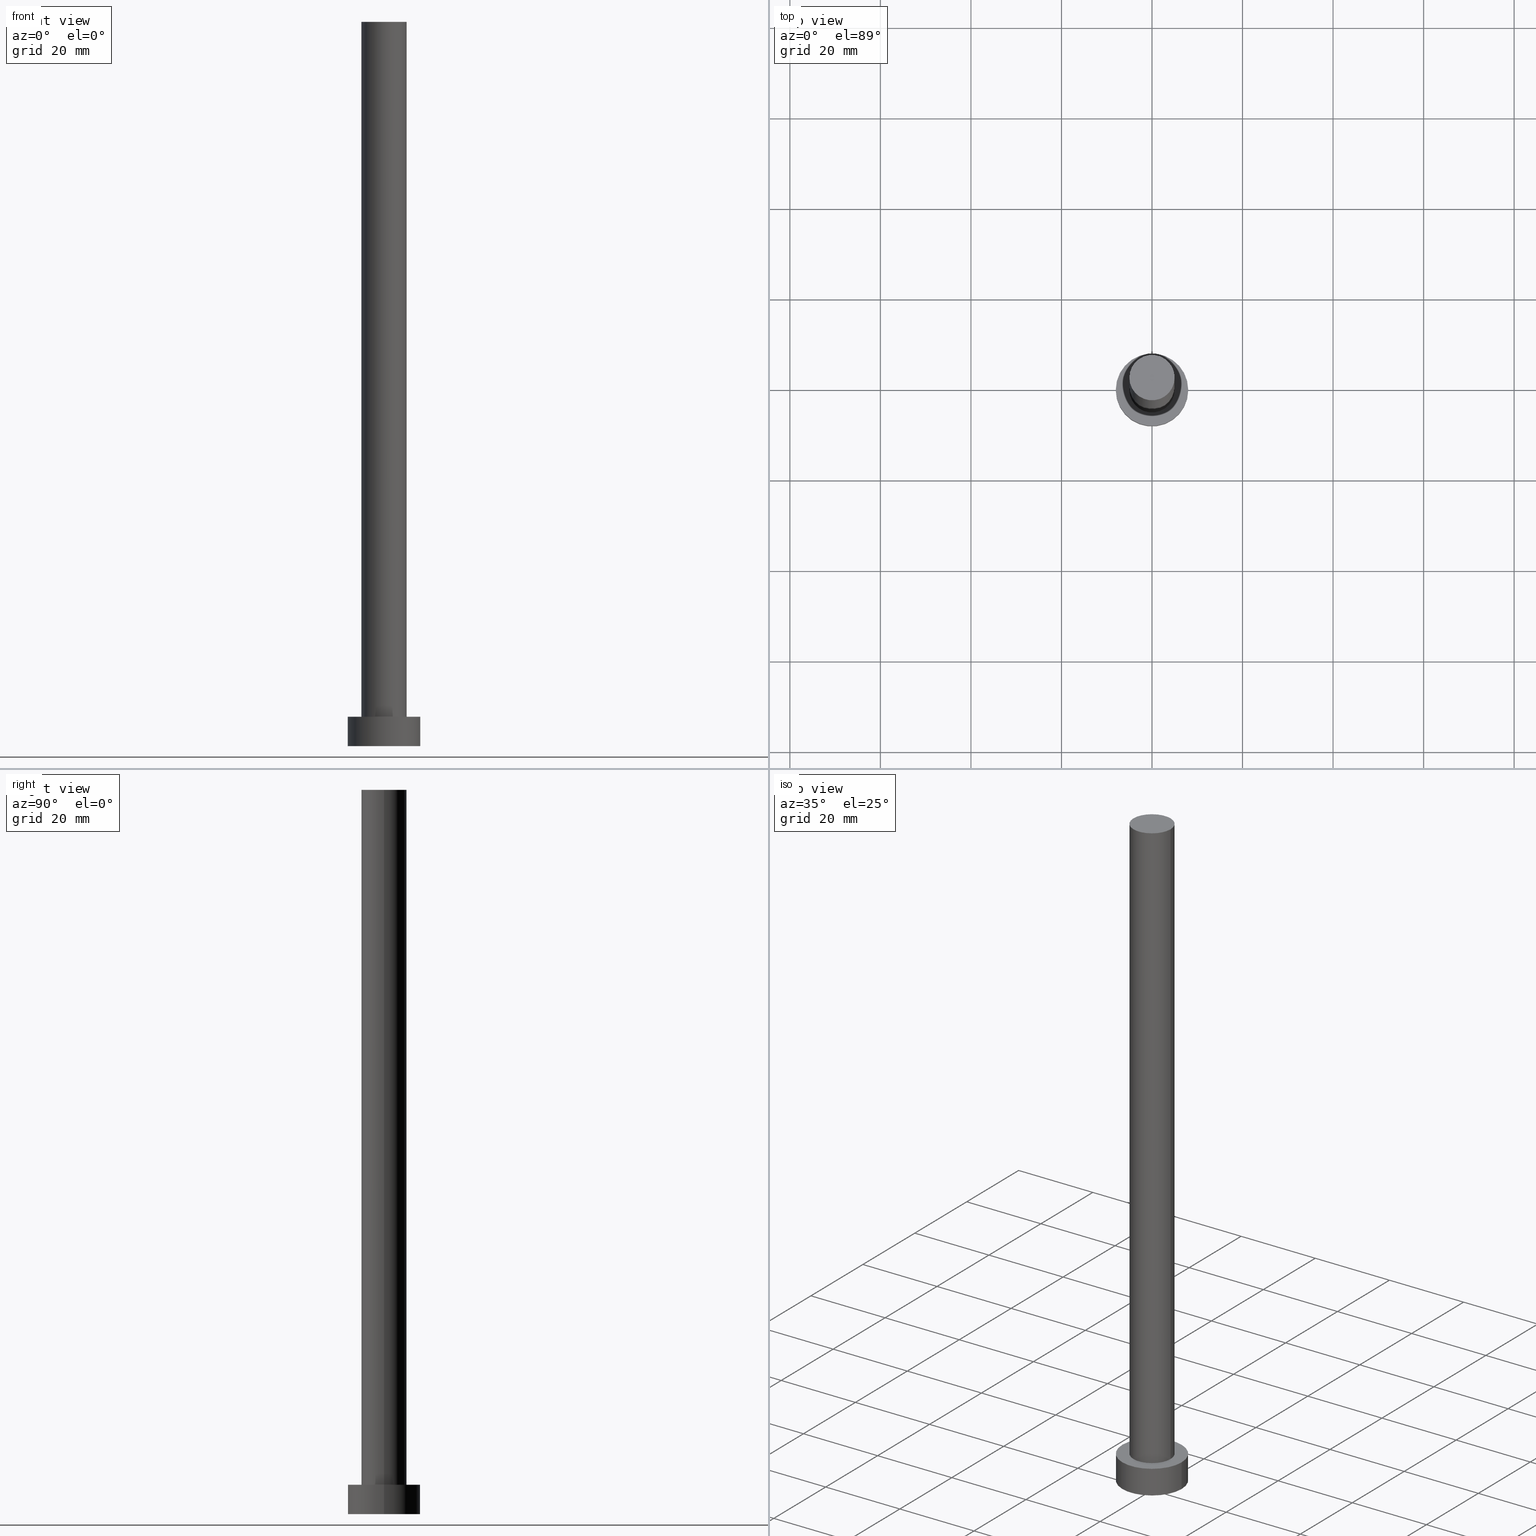
[diagram: canonical four-view strip — front | top / right | iso, engineering-drawing reading convention]
A machine part, canonical four-view strip (front | top / right | iso — engineering-drawing reading convention). The complete STEP part file that produces these views, byte-faithful:
ISO-10303-21;
HEADER;
FILE_DESCRIPTION (( 'STEP AP203' ),
    '1' );
FILE_NAME ('6985.STEP',
    '2023-02-13T13:10:25',
    ( '' ),
    ( '' ),
    'SwSTEP 2.0',
    'SolidWorks 2019',
    '' );
FILE_SCHEMA (( 'CONFIG_CONTROL_DESIGN' ));
ENDSEC;

DATA;
#1 = EDGE_CURVE ( 'NONE', #134, #72, #242, .T. ) ;
#2 = CARTESIAN_POINT ( 'NONE',  ( 0.000000000000000000, 0.000000000000000000, 6.500000000000000000 ) ) ;
#3 = CC_DESIGN_PERSON_AND_ORGANIZATION_ASSIGNMENT ( #217, #76, ( #206 ) ) ;
#4 = AXIS2_PLACEMENT_3D ( 'NONE', #12, #126, #26 ) ;
#5 = DIRECTION ( 'NONE',  ( -0.000000000000000000, -0.000000000000000000, -1.000000000000000000 ) ) ;
#6 = DIRECTION ( 'NONE',  ( -0.000000000000000000, -0.000000000000000000, -1.000000000000000000 ) ) ;
#7 = CIRCLE ( 'NONE', #4, 5.000000000000000888 ) ;
#8 = CARTESIAN_POINT ( 'NONE',  ( 0.000000000000000000, 0.000000000000000000, 0.000000000000000000 ) ) ;
#9 = ORIENTED_EDGE ( 'NONE', *, *, #55, .F. ) ;
#10 = PRODUCT_DEFINITION_SHAPE ( 'NONE', 'NONE',  #206 ) ;
#11 = ORIENTED_EDGE ( 'NONE', *, *, #236, .F. ) ;
#12 = CARTESIAN_POINT ( 'NONE',  ( 0.000000000000000000, 0.000000000000000000, 160.0000000000000000 ) ) ;
#13 = APPLICATION_CONTEXT ( 'configuration controlled 3d designs of mechanical parts and assemblies' ) ;
#14 = AXIS2_PLACEMENT_3D ( 'NONE', #247, #249, #108 ) ;
#15 = ADVANCED_FACE ( 'NONE', ( #173 ), #31, .F. ) ;
#16 = PERSON_AND_ORGANIZATION ( #140, #203 ) ;
#17 = APPROVAL_ROLE ( '' ) ;
#18 = AXIS2_PLACEMENT_3D ( 'NONE', #117, #35, #110 ) ;
#19 = APPROVAL_DATE_TIME ( #114, #122 ) ;
#20 = APPROVAL_ROLE ( '' ) ;
#21 = ORIENTED_EDGE ( 'NONE', *, *, #188, .T. ) ;
#22 = CARTESIAN_POINT ( 'NONE',  ( -8.000000000000000000, 0.000000000000000000, 0.000000000000000000 ) ) ;
#23 = APPROVAL_PERSON_ORGANIZATION ( #202, #185, #100 ) ;
#24 = CC_DESIGN_APPROVAL ( #122, ( #115 ) ) ;
#25 = CYLINDRICAL_SURFACE ( 'NONE', #50, 5.000000000000000888 ) ;
#26 = DIRECTION ( 'NONE',  ( 1.000000000000000000, 0.000000000000000000, 0.000000000000000000 ) ) ;
#27 = EDGE_CURVE ( 'NONE', #68, #61, #144, .T. ) ;
#28 = VECTOR ( 'NONE', #46, 1000.000000000000000 ) ;
#29 = CARTESIAN_POINT ( 'NONE',  ( -8.000000000000000000, 0.000000000000000000, 6.500000000000000000 ) ) ;
#30 = CARTESIAN_POINT ( 'NONE',  ( 0.000000000000000000, 0.000000000000000000, 0.000000000000000000 ) ) ;
#31 = PLANE ( 'NONE',  #198 ) ;
#32 = ORIENTED_EDGE ( 'NONE', *, *, #55, .T. ) ;
#33 = AXIS2_PLACEMENT_3D ( 'NONE', #39, #118, #57 ) ;
#34 = ORIENTED_EDGE ( 'NONE', *, *, #1, .T. ) ;
#35 = DIRECTION ( 'NONE',  ( 0.000000000000000000, 0.000000000000000000, 1.000000000000000000 ) ) ;
#36 = CALENDAR_DATE ( 2023, 13, 2 ) ;
#37 = DIRECTION ( 'NONE',  ( 0.000000000000000000, 0.000000000000000000, 1.000000000000000000 ) ) ;
#38 = APPROVAL_PERSON_ORGANIZATION ( #239, #122, #17 ) ;
#39 = CARTESIAN_POINT ( 'NONE',  ( 0.000000000000000000, 0.000000000000000000, 160.0000000000000000 ) ) ;
#40 = COORDINATED_UNIVERSAL_TIME_OFFSET ( 1, 0, .AHEAD. ) ;
#41 = FACE_OUTER_BOUND ( 'NONE', #85, .T. ) ;
#42 = APPROVAL_STATUS ( 'not_yet_approved' ) ;
#43 = EDGE_CURVE ( 'NONE', #61, #134, #208, .T. ) ;
#44 = ORIENTED_EDGE ( 'NONE', *, *, #188, .F. ) ;
#45 = PRODUCT_RELATED_PRODUCT_CATEGORY ( 'detail', '', ( #168 ) ) ;
#46 = DIRECTION ( 'NONE',  ( -0.000000000000000000, -0.000000000000000000, -1.000000000000000000 ) ) ;
#47 = CC_DESIGN_PERSON_AND_ORGANIZATION_ASSIGNMENT ( #16, #90, ( #168 ) ) ;
#48 = CARTESIAN_POINT ( 'NONE',  ( 0.000000000000000000, 0.000000000000000000, 6.500000000000000000 ) ) ;
#49 = DIRECTION ( 'NONE',  ( -1.000000000000000000, 0.000000000000000000, 0.000000000000000000 ) ) ;
#50 = AXIS2_PLACEMENT_3D ( 'NONE', #119, #5, #245 ) ;
#51 = AXIS2_PLACEMENT_3D ( 'NONE', #48, #52, #53 ) ;
#52 = DIRECTION ( 'NONE',  ( 0.000000000000000000, 0.000000000000000000, 1.000000000000000000 ) ) ;
#53 = DIRECTION ( 'NONE',  ( 1.000000000000000000, 0.000000000000000000, 0.000000000000000000 ) ) ;
#54 = CALENDAR_DATE ( 2023, 13, 2 ) ;
#55 = EDGE_CURVE ( 'NONE', #68, #72, #152, .T. ) ;
#56 = ORIENTED_EDGE ( 'NONE', *, *, #142, .F. ) ;
#57 = DIRECTION ( 'NONE',  ( 1.000000000000000000, 0.000000000000000000, -0.000000000000000000 ) ) ;
#58 = PLANE ( 'NONE',  #204 ) ;
#59 = SECURITY_CLASSIFICATION ( '', '', #200 ) ;
#60 = AXIS2_PLACEMENT_3D ( 'NONE', #227, #151, #229 ) ;
#61 = VERTEX_POINT ( 'NONE', #150 ) ;
#62 = PERSON_AND_ORGANIZATION ( #140, #203 ) ;
#63 = DIRECTION ( 'NONE',  ( 0.000000000000000000, 0.000000000000000000, 1.000000000000000000 ) ) ;
#64 = EDGE_CURVE ( 'NONE', #61, #68, #209, .T. ) ;
#65 = CIRCLE ( 'NONE', #93, 5.000000000000000888 ) ;
#66 = VECTOR ( 'NONE', #192, 1000.000000000000000 ) ;
#67 = LINE ( 'NONE', #149, #28 ) ;
#68 = VERTEX_POINT ( 'NONE', #189 ) ;
#69 = CLOSED_SHELL ( 'NONE', ( #161, #174, #218, #86, #15, #127, #132 ) ) ;
#70 = CARTESIAN_POINT ( 'NONE',  ( 8.000000000000000000, 9.797174393178823685E-16, 0.000000000000000000 ) ) ;
#71 = CYLINDRICAL_SURFACE ( 'NONE', #143, 8.000000000000000000 ) ;
#72 = VERTEX_POINT ( 'NONE', #70 ) ;
#73 = CC_DESIGN_PERSON_AND_ORGANIZATION_ASSIGNMENT ( #62, #184, ( #115 ) ) ;
#74 = CARTESIAN_POINT ( 'NONE',  ( -5.000000000000000888, 0.000000000000000000, 160.0000000000000000 ) ) ;
#75 = VERTEX_POINT ( 'NONE', #87 ) ;
#76 = PERSON_AND_ORGANIZATION_ROLE ( 'creator' ) ;
#77 = EDGE_CURVE ( 'NONE', #72, #134, #250, .T. ) ;
#78 = CYLINDRICAL_SURFACE ( 'NONE', #79, 8.000000000000000000 ) ;
#79 = AXIS2_PLACEMENT_3D ( 'NONE', #190, #107, #246 ) ;
#80 = EDGE_LOOP ( 'NONE', ( #94, #255 ) ) ;
#81 = DIRECTION ( 'NONE',  ( -0.000000000000000000, -0.000000000000000000, -1.000000000000000000 ) ) ;
#82 = DIRECTION ( 'NONE',  ( 1.000000000000000000, 0.000000000000000000, -0.000000000000000000 ) ) ;
#83 = SHAPE_DEFINITION_REPRESENTATION ( #10, #170 ) ;
#84 = CARTESIAN_POINT ( 'NONE',  ( 0.000000000000000000, 0.000000000000000000, 160.0000000000000000 ) ) ;
#85 = EDGE_LOOP ( 'NONE', ( #214, #121, #212, #56 ) ) ;
#86 = ADVANCED_FACE ( 'NONE', ( #221, #235 ), #58, .T. ) ;
#87 = CARTESIAN_POINT ( 'NONE',  ( -5.000000000000000888, 0.000000000000000000, 6.500000000000000000 ) ) ;
#88 = UNCERTAINTY_MEASURE_WITH_UNIT (LENGTH_MEASURE( 1.000000000000000082E-05 ), #226, 'distance_accuracy_value', 'NONE');
#89 = ORIENTED_EDGE ( 'NONE', *, *, #64, .T. ) ;
#90 = PERSON_AND_ORGANIZATION_ROLE ( 'design_owner' ) ;
#91 = COORDINATED_UNIVERSAL_TIME_OFFSET ( 1, 0, .AHEAD. ) ;
#92 =( GEOMETRIC_REPRESENTATION_CONTEXT ( 3 ) GLOBAL_UNCERTAINTY_ASSIGNED_CONTEXT ( ( #88 ) ) GLOBAL_UNIT_ASSIGNED_CONTEXT ( ( #226, #116, #154 ) ) REPRESENTATION_CONTEXT ( 'NONE', 'WORKASPACE' ) );
#93 = AXIS2_PLACEMENT_3D ( 'NONE', #2, #63, #133 ) ;
#94 = ORIENTED_EDGE ( 'NONE', *, *, #99, .F. ) ;
#95 = CARTESIAN_POINT ( 'NONE',  ( -5.000000000000000888, 0.000000000000000000, 160.0000000000000000 ) ) ;
#96 = COORDINATED_UNIVERSAL_TIME_OFFSET ( 1, 0, .AHEAD. ) ;
#97 = PERSON_AND_ORGANIZATION ( #140, #203 ) ;
#98 = DIRECTION ( 'NONE',  ( 0.000000000000000000, 0.000000000000000000, 1.000000000000000000 ) ) ;
#99 = EDGE_CURVE ( 'NONE', #75, #224, #65, .T. ) ;
#100 = APPROVAL_ROLE ( '' ) ;
#101 = ORIENTED_EDGE ( 'NONE', *, *, #99, .T. ) ;
#102 = APPROVAL_DATE_TIME ( #244, #185 ) ;
#103 = CIRCLE ( 'NONE', #187, 5.000000000000000888 ) ;
#104 = CC_DESIGN_SECURITY_CLASSIFICATION ( #59, ( #115 ) ) ;
#105 = EDGE_LOOP ( 'NONE', ( #21, #237 ) ) ;
#106 = VERTEX_POINT ( 'NONE', #74 ) ;
#107 = DIRECTION ( 'NONE',  ( -0.000000000000000000, -0.000000000000000000, -1.000000000000000000 ) ) ;
#108 = DIRECTION ( 'NONE',  ( 1.000000000000000000, 0.000000000000000000, 0.000000000000000000 ) ) ;
#109 = DIRECTION ( 'NONE',  ( -0.000000000000000000, -0.000000000000000000, -1.000000000000000000 ) ) ;
#110 = DIRECTION ( 'NONE',  ( 1.000000000000000000, 0.000000000000000000, 0.000000000000000000 ) ) ;
#111 = APPROVAL ( #232, 'NEUR�EN�' ) ;
#112 = APPROVAL_STATUS ( 'not_yet_approved' ) ;
#113 = DIRECTION ( 'NONE',  ( -0.000000000000000000, -0.000000000000000000, -1.000000000000000000 ) ) ;
#114 = DATE_AND_TIME ( #177, #139 ) ;
#115 = PRODUCT_DEFINITION_FORMATION_WITH_SPECIFIED_SOURCE ( 'LIBOVOLN�', '', #168, .NOT_KNOWN. ) ;
#116 =( NAMED_UNIT ( * ) PLANE_ANGLE_UNIT ( ) SI_UNIT ( $, .RADIAN. ) );
#117 = CARTESIAN_POINT ( 'NONE',  ( 0.000000000000000000, 0.000000000000000000, 0.000000000000000000 ) ) ;
#118 = DIRECTION ( 'NONE',  ( 0.000000000000000000, 0.000000000000000000, 1.000000000000000000 ) ) ;
#119 = CARTESIAN_POINT ( 'NONE',  ( 0.000000000000000000, 0.000000000000000000, 160.0000000000000000 ) ) ;
#120 = CC_DESIGN_APPROVAL ( #185, ( #59 ) ) ;
#121 = ORIENTED_EDGE ( 'NONE', *, *, #236, .T. ) ;
#122 = APPROVAL ( #112, 'NEUR�EN�' ) ;
#123 = DATE_TIME_ROLE ( 'classification_date' ) ;
#124 = VERTEX_POINT ( 'NONE', #254 ) ;
#125 = CALENDAR_DATE ( 2023, 13, 2 ) ;
#126 = DIRECTION ( 'NONE',  ( 0.000000000000000000, 0.000000000000000000, 1.000000000000000000 ) ) ;
#127 = ADVANCED_FACE ( 'NONE', ( #180 ), #220, .T. ) ;
#128 = LOCAL_TIME ( 14, 10, 25.00000000000000000, #96 ) ;
#129 = AXIS2_PLACEMENT_3D ( 'NONE', #30, #186, #251 ) ;
#130 = CARTESIAN_POINT ( 'NONE',  ( 5.000000000000000888, 6.123233995736767268E-16, 6.500000000000000000 ) ) ;
#131 = ORIENTED_EDGE ( 'NONE', *, *, #27, .F. ) ;
#132 = ADVANCED_FACE ( 'NONE', ( #160 ), #233, .T. ) ;
#133 = DIRECTION ( 'NONE',  ( 1.000000000000000000, 0.000000000000000000, 0.000000000000000000 ) ) ;
#134 = VERTEX_POINT ( 'NONE', #22 ) ;
#135 = APPROVAL_DATE_TIME ( #181, #111 ) ;
#136 = DATE_TIME_ROLE ( 'creation_date' ) ;
#137 = CARTESIAN_POINT ( 'NONE',  ( 0.000000000000000000, 0.000000000000000000, 6.500000000000000000 ) ) ;
#138 = EDGE_CURVE ( 'NONE', #224, #75, #215, .T. ) ;
#139 = LOCAL_TIME ( 14, 10, 25.00000000000000000, #91 ) ;
#140 = PERSON ( 'NEUR�EN�', 'NEUR�EN�', 'NEUR�EN�', ('NEUR�EN�'), ('NEUR�EN�'), ('NEUR�EN�') ) ;
#141 = PERSON_AND_ORGANIZATION_ROLE ( 'classification_officer' ) ;
#142 = EDGE_CURVE ( 'NONE', #106, #75, #182, .T. ) ;
#143 = AXIS2_PLACEMENT_3D ( 'NONE', #231, #6, #49 ) ;
#144 = CIRCLE ( 'NONE', #14, 8.000000000000000000 ) ;
#145 = PERSON_AND_ORGANIZATION_ROLE ( 'design_supplier' ) ;
#146 = DATE_AND_TIME ( #125, #199 ) ;
#147 = CALENDAR_DATE ( 2023, 13, 2 ) ;
#148 = ORIENTED_EDGE ( 'NONE', *, *, #43, .T. ) ;
#149 = CARTESIAN_POINT ( 'NONE',  ( 5.000000000000000888, 6.123233995736767268E-16, 160.0000000000000000 ) ) ;
#150 = CARTESIAN_POINT ( 'NONE',  ( -8.000000000000000000, 0.000000000000000000, 6.500000000000000000 ) ) ;
#151 = DIRECTION ( 'NONE',  ( 0.000000000000000000, 0.000000000000000000, 1.000000000000000000 ) ) ;
#152 = LINE ( 'NONE', #225, #66 ) ;
#153 = DESIGN_CONTEXT ( 'detailed design', #13, 'design' ) ;
#154 =( NAMED_UNIT ( * ) SI_UNIT ( $, .STERADIAN. ) SOLID_ANGLE_UNIT ( ) );
#155 = ORIENTED_EDGE ( 'NONE', *, *, #43, .F. ) ;
#156 = COORDINATED_UNIVERSAL_TIME_OFFSET ( 1, 0, .AHEAD. ) ;
#157 = DIRECTION ( 'NONE',  ( -1.000000000000000000, 0.000000000000000000, 0.000000000000000000 ) ) ;
#158 = ORIENTED_EDGE ( 'NONE', *, *, #142, .T. ) ;
#159 = DATE_AND_TIME ( #36, #172 ) ;
#160 = FACE_OUTER_BOUND ( 'NONE', #105, .T. ) ;
#161 = ADVANCED_FACE ( 'NONE', ( #41 ), #25, .T. ) ;
#162 = PERSON_AND_ORGANIZATION ( #140, #203 ) ;
#163 = AXIS2_PLACEMENT_3D ( 'NONE', #137, #98, #219 ) ;
#164 = COORDINATED_UNIVERSAL_TIME_OFFSET ( 1, 0, .AHEAD. ) ;
#165 = EDGE_LOOP ( 'NONE', ( #131, #32, #210, #155 ) ) ;
#166 = CC_DESIGN_DATE_AND_TIME_ASSIGNMENT ( #159, #136, ( #206 ) ) ;
#167 = DIRECTION ( 'NONE',  ( 1.000000000000000000, 0.000000000000000000, 0.000000000000000000 ) ) ;
#168 = PRODUCT ( '6985', '6985', '', ( #197 ) ) ;
#169 = ORIENTED_EDGE ( 'NONE', *, *, #64, .F. ) ;
#170 = ADVANCED_BREP_SHAPE_REPRESENTATION ( '6985', ( #213, #18 ), #92 ) ;
#171 = FACE_OUTER_BOUND ( 'NONE', #248, .T. ) ;
#172 = LOCAL_TIME ( 14, 10, 25.00000000000000000, #156 ) ;
#173 = FACE_OUTER_BOUND ( 'NONE', #211, .T. ) ;
#174 = ADVANCED_FACE ( 'NONE', ( #183 ), #78, .T. ) ;
#175 = CARTESIAN_POINT ( 'NONE',  ( 0.000000000000000000, 0.000000000000000000, 6.500000000000000000 ) ) ;
#176 = EDGE_CURVE ( 'NONE', #124, #106, #7, .T. ) ;
#177 = CALENDAR_DATE ( 2023, 13, 2 ) ;
#178 = VECTOR ( 'NONE', #109, 1000.000000000000000 ) ;
#179 = EDGE_LOOP ( 'NONE', ( #89, #252 ) ) ;
#180 = FACE_OUTER_BOUND ( 'NONE', #240, .T. ) ;
#181 = DATE_AND_TIME ( #54, #128 ) ;
#182 = LINE ( 'NONE', #95, #241 ) ;
#183 = FACE_OUTER_BOUND ( 'NONE', #165, .T. ) ;
#184 = PERSON_AND_ORGANIZATION_ROLE ( 'creator' ) ;
#185 = APPROVAL ( #42, 'NEUR�EN�' ) ;
#186 = DIRECTION ( 'NONE',  ( 0.000000000000000000, 0.000000000000000000, 1.000000000000000000 ) ) ;
#187 = AXIS2_PLACEMENT_3D ( 'NONE', #84, #205, #167 ) ;
#188 = EDGE_CURVE ( 'NONE', #106, #124, #103, .T. ) ;
#189 = CARTESIAN_POINT ( 'NONE',  ( 8.000000000000000000, 9.797174393178823685E-16, 6.500000000000000000 ) ) ;
#190 = CARTESIAN_POINT ( 'NONE',  ( 0.000000000000000000, 0.000000000000000000, 6.500000000000000000 ) ) ;
#191 = DIRECTION ( 'NONE',  ( 0.000000000000000000, 0.000000000000000000, 1.000000000000000000 ) ) ;
#192 = DIRECTION ( 'NONE',  ( -0.000000000000000000, -0.000000000000000000, -1.000000000000000000 ) ) ;
#193 = APPLICATION_PROTOCOL_DEFINITION ( 'international standard', 'config_control_design', 1994, #230 ) ;
#194 = DIRECTION ( 'NONE',  ( 1.000000000000000000, 0.000000000000000000, -0.000000000000000000 ) ) ;
#195 = CC_DESIGN_PERSON_AND_ORGANIZATION_ASSIGNMENT ( #162, #145, ( #115 ) ) ;
#196 = CARTESIAN_POINT ( 'NONE',  ( 0.000000000000000000, 0.000000000000000000, 160.0000000000000000 ) ) ;
#197 = MECHANICAL_CONTEXT ( 'NONE', #230, 'mechanical' ) ;
#198 = AXIS2_PLACEMENT_3D ( 'NONE', #8, #191, #82 ) ;
#199 = LOCAL_TIME ( 14, 10, 25.00000000000000000, #40 ) ;
#200 = SECURITY_CLASSIFICATION_LEVEL ( 'unclassified' ) ;
#201 = CC_DESIGN_DATE_AND_TIME_ASSIGNMENT ( #146, #123, ( #59 ) ) ;
#202 = PERSON_AND_ORGANIZATION ( #140, #203 ) ;
#203 = ORGANIZATION ( 'NEUR�EN�', 'NEUR�EN�', '' ) ;
#204 = AXIS2_PLACEMENT_3D ( 'NONE', #175, #37, #194 ) ;
#205 = DIRECTION ( 'NONE',  ( 0.000000000000000000, 0.000000000000000000, 1.000000000000000000 ) ) ;
#206 = PRODUCT_DEFINITION ( 'NEZN�M�', '', #115, #153 ) ;
#207 = ORIENTED_EDGE ( 'NONE', *, *, #1, .F. ) ;
#208 = LINE ( 'NONE', #29, #178 ) ;
#209 = CIRCLE ( 'NONE', #51, 8.000000000000000000 ) ;
#210 = ORIENTED_EDGE ( 'NONE', *, *, #77, .T. ) ;
#211 = EDGE_LOOP ( 'NONE', ( #207, #216 ) ) ;
#212 = ORIENTED_EDGE ( 'NONE', *, *, #138, .T. ) ;
#213 = MANIFOLD_SOLID_BREP ( 'P�idat vysunut�m3', #69 ) ;
#214 = ORIENTED_EDGE ( 'NONE', *, *, #176, .F. ) ;
#215 = CIRCLE ( 'NONE', #163, 5.000000000000000888 ) ;
#216 = ORIENTED_EDGE ( 'NONE', *, *, #77, .F. ) ;
#217 = PERSON_AND_ORGANIZATION ( #140, #203 ) ;
#218 = ADVANCED_FACE ( 'NONE', ( #171 ), #71, .T. ) ;
#219 = DIRECTION ( 'NONE',  ( 1.000000000000000000, 0.000000000000000000, 0.000000000000000000 ) ) ;
#220 = CYLINDRICAL_SURFACE ( 'NONE', #223, 5.000000000000000888 ) ;
#221 = FACE_BOUND ( 'NONE', #80, .T. ) ;
#222 = CC_DESIGN_PERSON_AND_ORGANIZATION_ASSIGNMENT ( #97, #141, ( #59 ) ) ;
#223 = AXIS2_PLACEMENT_3D ( 'NONE', #196, #113, #157 ) ;
#224 = VERTEX_POINT ( 'NONE', #130 ) ;
#225 = CARTESIAN_POINT ( 'NONE',  ( 8.000000000000000000, 9.797174393178823685E-16, 6.500000000000000000 ) ) ;
#226 =( LENGTH_UNIT ( ) NAMED_UNIT ( * ) SI_UNIT ( .MILLI., .METRE. ) );
#227 = CARTESIAN_POINT ( 'NONE',  ( 0.000000000000000000, 0.000000000000000000, 0.000000000000000000 ) ) ;
#228 = CC_DESIGN_APPROVAL ( #111, ( #206 ) ) ;
#229 = DIRECTION ( 'NONE',  ( 1.000000000000000000, 0.000000000000000000, 0.000000000000000000 ) ) ;
#230 = APPLICATION_CONTEXT ( 'configuration controlled 3d designs of mechanical parts and assemblies' ) ;
#231 = CARTESIAN_POINT ( 'NONE',  ( 0.000000000000000000, 0.000000000000000000, 6.500000000000000000 ) ) ;
#232 = APPROVAL_STATUS ( 'not_yet_approved' ) ;
#233 = PLANE ( 'NONE',  #33 ) ;
#234 = APPLICATION_PROTOCOL_DEFINITION ( 'international standard', 'config_control_design', 1994, #13 ) ;
#235 = FACE_OUTER_BOUND ( 'NONE', #179, .T. ) ;
#236 = EDGE_CURVE ( 'NONE', #124, #224, #67, .T. ) ;
#237 = ORIENTED_EDGE ( 'NONE', *, *, #176, .T. ) ;
#238 = APPROVAL_PERSON_ORGANIZATION ( #253, #111, #20 ) ;
#239 = PERSON_AND_ORGANIZATION ( #140, #203 ) ;
#240 = EDGE_LOOP ( 'NONE', ( #11, #44, #158, #101 ) ) ;
#241 = VECTOR ( 'NONE', #81, 1000.000000000000000 ) ;
#242 = CIRCLE ( 'NONE', #129, 8.000000000000000000 ) ;
#243 = LOCAL_TIME ( 14, 10, 25.00000000000000000, #164 ) ;
#244 = DATE_AND_TIME ( #147, #243 ) ;
#245 = DIRECTION ( 'NONE',  ( -1.000000000000000000, 0.000000000000000000, 0.000000000000000000 ) ) ;
#246 = DIRECTION ( 'NONE',  ( -1.000000000000000000, 0.000000000000000000, 0.000000000000000000 ) ) ;
#247 = CARTESIAN_POINT ( 'NONE',  ( 0.000000000000000000, 0.000000000000000000, 6.500000000000000000 ) ) ;
#248 = EDGE_LOOP ( 'NONE', ( #9, #169, #148, #34 ) ) ;
#249 = DIRECTION ( 'NONE',  ( 0.000000000000000000, 0.000000000000000000, 1.000000000000000000 ) ) ;
#250 = CIRCLE ( 'NONE', #60, 8.000000000000000000 ) ;
#251 = DIRECTION ( 'NONE',  ( 1.000000000000000000, 0.000000000000000000, 0.000000000000000000 ) ) ;
#252 = ORIENTED_EDGE ( 'NONE', *, *, #27, .T. ) ;
#253 = PERSON_AND_ORGANIZATION ( #140, #203 ) ;
#254 = CARTESIAN_POINT ( 'NONE',  ( 5.000000000000000888, 6.123233995736767268E-16, 160.0000000000000000 ) ) ;
#255 = ORIENTED_EDGE ( 'NONE', *, *, #138, .F. ) ;
ENDSEC;
END-ISO-10303-21;
